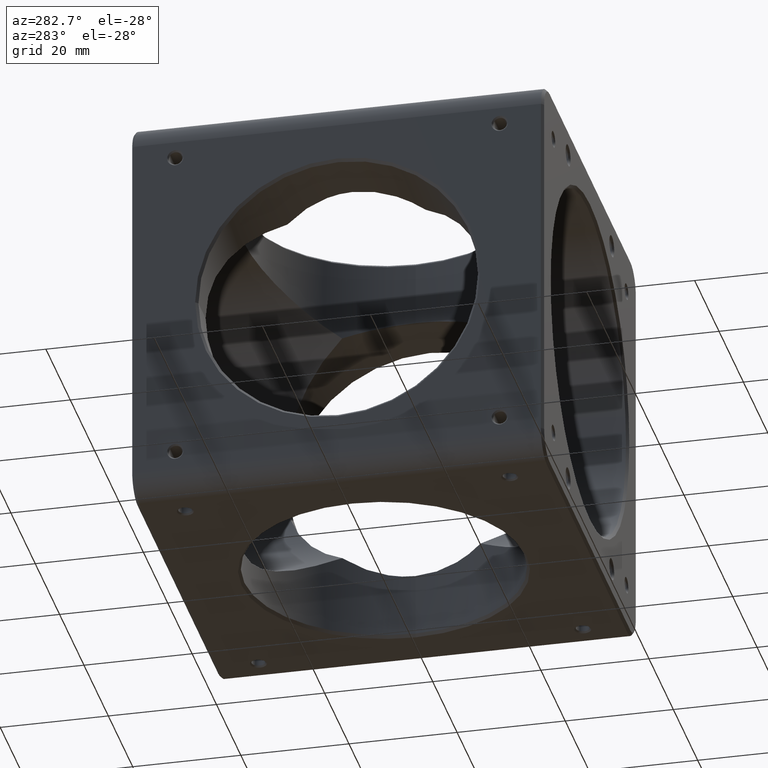
[diagram: clean part render]
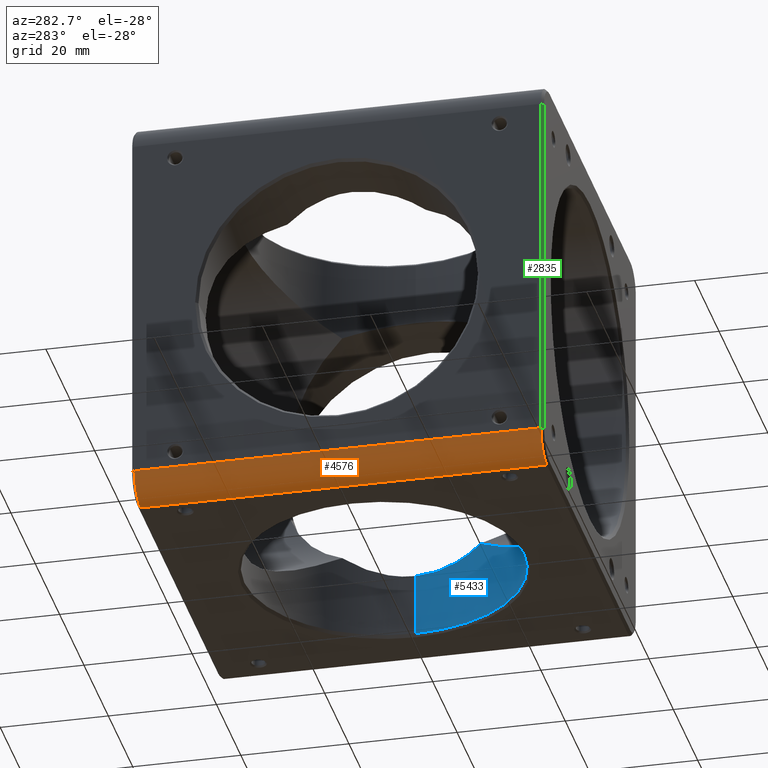
[diagram: same view with three faces highlighted in distinct colors, each labeled with its STEP entity id]
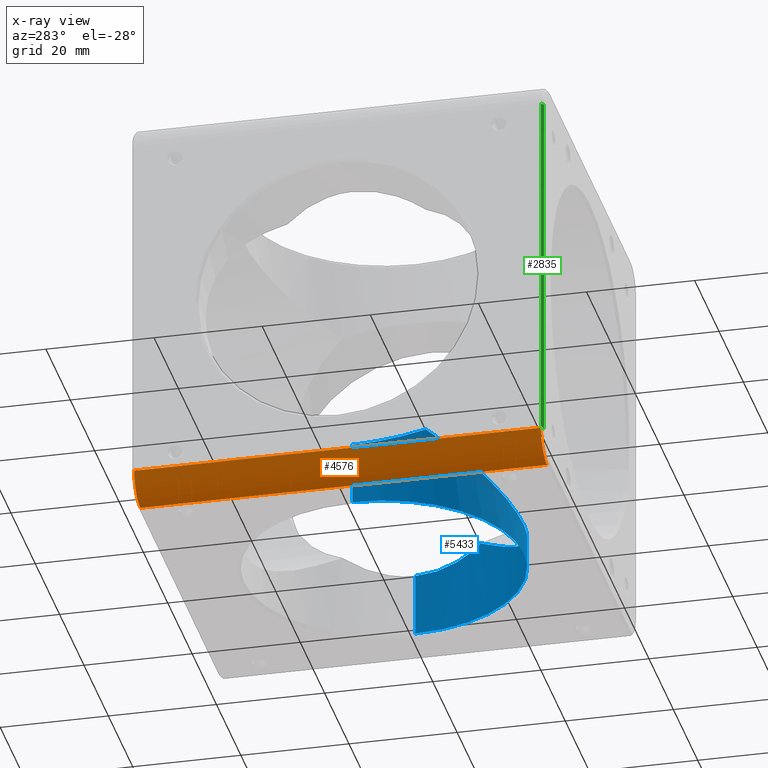
[diagram: x-ray of the same camera — body ghosted, the three highlighted faces saturated]
A machine part, auxiliary view with three faces highlighted in distinct colors.
The next image is the same camera in x-ray (body ghosted, the three faces saturated) — at least one of them is partly hidden behind the body in this view.
Their STEP definitions:

[orange] entity #4576 — the highlighted cylindrical surface (edge-blend (fillet) strip) has radius 5 mm, axis along (0, -1, 0).
#22 = AXIS2_PLACEMENT_3D ( 'NONE', #178, #3489, #5312 ) ;
#178 = CARTESIAN_POINT ( 'NONE',  ( -33.09999999999999432, -37.60000000000002274, -33.10000000000000853 ) ) ;
#289 = LINE ( 'NONE', #3669, #3917 ) ;
#314 = DIRECTION ( 'NONE',  ( 0.0000000000000000000, 0.0000000000000000000, -1.000000000000000000 ) ) ;
#1057 = AXIS2_PLACEMENT_3D ( 'NONE', #4077, #4037, #314 ) ;
#1232 = VERTEX_POINT ( 'NONE', #5263 ) ;
#1467 = EDGE_CURVE ( 'NONE', #1232, #4049, #5552, .T. ) ;
#1545 = CIRCLE ( 'NONE', #22, 5.000000000000000888 ) ;
#1603 = ORIENTED_EDGE ( 'NONE', *, *, #4471, .F. ) ;
#2088 = EDGE_CURVE ( 'NONE', #5315, #4114, #1545, .T. ) ;
#2319 = DIRECTION ( 'NONE',  ( 1.821231995776175479E-16, -1.000000000000000000, 0.0000000000000000000 ) ) ;
#2441 = ORIENTED_EDGE ( 'NONE', *, *, #1467, .T. ) ;
#2630 = ORIENTED_EDGE ( 'NONE', *, *, #2088, .T. ) ;
#2658 = LINE ( 'NONE', #5009, #5354 ) ;
#2740 = DIRECTION ( 'NONE',  ( 1.000000000000000000, 0.0000000000000000000, 0.0000000000000000000 ) ) ;
#2778 = CARTESIAN_POINT ( 'NONE',  ( -33.10000000000000853, 38.09999999999999432, -33.10000000000000853 ) ) ;
#3317 = CYLINDRICAL_SURFACE ( 'NONE', #4272, 5.000000000000000888 ) ;
#3489 = DIRECTION ( 'NONE',  ( 0.0000000000000000000, 1.000000000000000000, 0.0000000000000000000 ) ) ;
#3545 = CARTESIAN_POINT ( 'NONE',  ( -33.10000000000000853, 37.60000000000000853, -38.10000000000000142 ) ) ;
#3557 = ORIENTED_EDGE ( 'NONE', *, *, #4123, .F. ) ;
#3669 = CARTESIAN_POINT ( 'NONE',  ( -33.10000000000000142, -6.028277906019141821E-15, -38.10000000000000142 ) ) ;
#3917 = VECTOR ( 'NONE', #6034, 1000.000000000000000 ) ;
#3999 = FACE_OUTER_BOUND ( 'NONE', #5155, .T. ) ;
#4037 = DIRECTION ( 'NONE',  ( 0.0000000000000000000, -1.000000000000000000, 0.0000000000000000000 ) ) ;
#4049 = VERTEX_POINT ( 'NONE', #3545 ) ;
#4077 = CARTESIAN_POINT ( 'NONE',  ( -33.10000000000000853, 37.60000000000000853, -33.10000000000000853 ) ) ;
#4114 = VERTEX_POINT ( 'NONE', #5087 ) ;
#4123 = EDGE_CURVE ( 'NONE', #5315, #4049, #289, .T. ) ;
#4254 = CARTESIAN_POINT ( 'NONE',  ( -33.09999999999999432, -37.60000000000002274, -38.10000000000000142 ) ) ;
#4272 = AXIS2_PLACEMENT_3D ( 'NONE', #2778, #2319, #2740 ) ;
#4471 = EDGE_CURVE ( 'NONE', #1232, #4114, #2658, .T. ) ;
#4576 = ADVANCED_FACE ( 'NONE', ( #3999 ), #3317, .T. ) ;
#5009 = CARTESIAN_POINT ( 'NONE',  ( -38.10000000000000853, 38.09999999999999432, -33.10000000000000853 ) ) ;
#5087 = CARTESIAN_POINT ( 'NONE',  ( -38.09999999999999432, -37.60000000000002274, -33.10000000000000853 ) ) ;
#5155 = EDGE_LOOP ( 'NONE', ( #3557, #2630, #1603, #2441 ) ) ;
#5263 = CARTESIAN_POINT ( 'NONE',  ( -38.10000000000000853, 37.60000000000000853, -33.10000000000000853 ) ) ;
#5312 = DIRECTION ( 'NONE',  ( 0.0000000000000000000, 0.0000000000000000000, 1.000000000000000000 ) ) ;
#5315 = VERTEX_POINT ( 'NONE', #4254 ) ;
#5354 = VECTOR ( 'NONE', #5462, 1000.000000000000000 ) ;
#5462 = DIRECTION ( 'NONE',  ( 1.821231995776175479E-16, -1.000000000000000000, 0.0000000000000000000 ) ) ;
#5552 = CIRCLE ( 'NONE', #1057, 4.999999999999997335 ) ;
#6034 = DIRECTION ( 'NONE',  ( -1.821231995776175479E-16, 1.000000000000000000, -0.0000000000000000000 ) ) ;

[blue] entity #5433 — the highlighted cylindrical surface (partial cylindrical patch) has radius 25.845 mm, axis along (-0, -0, -1).
#61 =( BOUNDED_CURVE ( )  B_SPLINE_CURVE ( 3, ( #4275, #3839, #4290, #4767 ),
 .UNSPECIFIED., .F., .T. ) 
 B_SPLINE_CURVE_WITH_KNOTS ( ( 4, 4 ),
 ( 2.623296937504102200, 3.141592653589793116 ),
 .UNSPECIFIED. ) 
 CURVE ( )  GEOMETRIC_REPRESENTATION_ITEM ( )  RATIONAL_B_SPLINE_CURVE ( ( 1.000000000000000000, 0.9777391309083932613, 0.9777391309083932613, 1.000000000000000000 ) ) 
 REPRESENTATION_ITEM ( '' )  );
#78 =( BOUNDED_CURVE ( )  B_SPLINE_CURVE ( 3, ( #396, #2330, #4725, #992 ),
 .UNSPECIFIED., .F., .F. ) 
 B_SPLINE_CURVE_WITH_KNOTS ( ( 4, 4 ),
 ( 0.0000000000000000000, 0.5182957160856516143 ),
 .UNSPECIFIED. ) 
 CURVE ( )  GEOMETRIC_REPRESENTATION_ITEM ( )  RATIONAL_B_SPLINE_CURVE ( ( 1.000000000000000000, 0.9777391309083967030, 0.9777391309083967030, 1.000000000000000000 ) ) 
 REPRESENTATION_ITEM ( '' )  );
#157 = CARTESIAN_POINT ( 'NONE',  ( -25.84499999999999886, 0.0000000000000000000, -37.59999999999990195 ) ) ;
#183 = CARTESIAN_POINT ( 'NONE',  ( -7.688962224019883607, -24.68180839699524043, -30.81040016890559841 ) ) ;
#188 = CARTESIAN_POINT ( 'NONE',  ( -25.84499999999999886, 0.0000000000000000000, -25.84499999999999886 ) ) ;
#204 = CARTESIAN_POINT ( 'NONE',  ( 17.81514527074461185, -18.73183969460124842, -26.28526596313227159 ) ) ;
#246 = CARTESIAN_POINT ( 'NONE',  ( 9.335434536426429730, -24.12805042232668029, -30.36739620683908214 ) ) ;
#280 = CARTESIAN_POINT ( 'NONE',  ( 19.32865632433955838, -17.19101503160539224, -25.20557273274049237 ) ) ;
#396 = CARTESIAN_POINT ( 'NONE',  ( 25.84499999999999886, 3.165099652396333975E-15, -25.84499999999999886 ) ) ;
#407 = CARTESIAN_POINT ( 'NONE',  ( 3.888303206786298122E-15, -25.84499999999999886, -31.74999999999999289 ) ) ;
#455 = VERTEX_POINT ( 'NONE', #2913 ) ;
#563 = CARTESIAN_POINT ( 'NONE',  ( -19.34288749091301085, -17.17494502539864243, -25.19460975910910960 ) ) ;
#633 = CARTESIAN_POINT ( 'NONE',  ( -18.21984667237212108, -18.33825821235884135, -26.00601808399796866 ) ) ;
#653 = CARTESIAN_POINT ( 'NONE',  ( -14.40651589955395551, -21.48651068447556867, -28.31305334065572410 ) ) ;
#877 = EDGE_CURVE ( 'NONE', #5138, #4638, #3869, .T. ) ;
#887 = EDGE_CURVE ( 'NONE', #4638, #4972, #4671, .T. ) ;
#992 = CARTESIAN_POINT ( 'NONE',  ( 22.45064030267221256, -12.80362351055241099, -22.45064030267355193 ) ) ;
#1043 = DIRECTION ( 'NONE',  ( -0.0000000000000000000, -0.0000000000000000000, -1.000000000000000000 ) ) ;
#1077 = CARTESIAN_POINT ( 'NONE',  ( -17.02547200056618593, -19.45238474709340792, -26.80351324315471118 ) ) ;
#1100 = CARTESIAN_POINT ( 'NONE',  ( -9.897202636066175785, -23.88191161807583285, -30.17322445336555248 ) ) ;
#1126 = CARTESIAN_POINT ( 'NONE',  ( -16.60611924818092433, -19.81176391541012904, -27.06566093436637033 ) ) ;
#1165 = CARTESIAN_POINT ( 'NONE',  ( 21.31570326424350625, -14.65473143854295124, -23.54626348800920965 ) ) ;
#1263 = EDGE_CURVE ( 'NONE', #5138, #3919, #61, .T. ) ;
#1427 = AXIS2_PLACEMENT_3D ( 'NONE', #6071, #1910, #4641 ) ;
#1482 = DIRECTION ( 'NONE',  ( -0.0000000000000000000, -0.0000000000000000000, -1.000000000000000000 ) ) ;
#1562 = CARTESIAN_POINT ( 'NONE',  ( -12.49420688565798088, -22.65198967103243177, -29.20738749243576393 ) ) ;
#1613 = EDGE_CURVE ( 'NONE', #3919, #4435, #1883, .T. ) ;
#1629 = CARTESIAN_POINT ( 'NONE',  ( -5.988274261424584743, -25.16934086708508289, -31.20186959097118162 ) ) ;
#1652 = CARTESIAN_POINT ( 'NONE',  ( 18.20368231813514726, -18.35431712406490590, -26.01734590773795475 ) ) ;
#1670 = CARTESIAN_POINT ( 'NONE',  ( 12.95237428408376168, -22.37218371706399722, -28.99272609665343481 ) ) ;
#1720 = ORIENTED_EDGE ( 'NONE', *, *, #3358, .T. ) ;
#1721 = ORIENTED_EDGE ( 'NONE', *, *, #1926, .T. ) ;
#1735 = CARTESIAN_POINT ( 'NONE',  ( 8.238362102897644590, -24.52513167385248138, -30.68457724993896818 ) ) ;
#1852 = CARTESIAN_POINT ( 'NONE',  ( 25.84499999999999886, 3.165099652396333580E-15, 38.10000000000000142 ) ) ;
#1883 = LINE ( 'NONE', #4709, #5414 ) ;
#1910 = DIRECTION ( 'NONE',  ( 0.0000000000000000000, 0.0000000000000000000, -1.000000000000000000 ) ) ;
#1917 = DIRECTION ( 'NONE',  ( -0.0000000000000000000, -0.0000000000000000000, -1.000000000000000000 ) ) ;
#1926 = EDGE_CURVE ( 'NONE', #5742, #4435, #3754, .T. ) ;
#1934 = EDGE_LOOP ( 'NONE', ( #2612, #1720, #1721, #4899, #4946, #2264, #4526 ) ) ;
#2016 = CARTESIAN_POINT ( 'NONE',  ( 1.202999135624844396, -25.84499999999999531, -31.74999999999999289 ) ) ;
#2035 = CARTESIAN_POINT ( 'NONE',  ( -0.6030113382820171397, -25.84500000000000242, -31.75000000000000000 ) ) ;
#2073 = FACE_OUTER_BOUND ( 'NONE', #1934, .T. ) ;
#2080 = CARTESIAN_POINT ( 'NONE',  ( -17.83158714638663866, -18.71620872484151477, -26.27412260873522598 ) ) ;
#2090 = LINE ( 'NONE', #1852, #4425 ) ;
#2099 = CARTESIAN_POINT ( 'NONE',  ( -2.416692140556037760, -25.73890639374301870, -31.66368844166057883 ) ) ;
#2167 = CARTESIAN_POINT ( 'NONE',  ( 4.793307906017638231, -25.40366024744984230, -31.39170349068858101 ) ) ;
#2183 = CARTESIAN_POINT ( 'NONE',  ( 15.29808671365649175, -20.86031528859518502, -27.83943263974729021 ) ) ;
#2204 = CARTESIAN_POINT ( 'NONE',  ( 12.46059894404367085, -22.64999317073553087, -29.20776185511119394 ) ) ;
#2264 = ORIENTED_EDGE ( 'NONE', *, *, #877, .T. ) ;
#2287 = CARTESIAN_POINT ( 'NONE',  ( 25.84499999999999886, 3.195715822375024861E-15, -37.59999999999990195 ) ) ;
#2330 = CARTESIAN_POINT ( 'NONE',  ( 25.84500000000000597, -4.515833756748623529, -25.84499999999998820 ) ) ;
#2495 = CARTESIAN_POINT ( 'NONE',  ( 4.195801804806095880, -25.50928708007777246, -31.47729004100007089 ) ) ;
#2553 = CARTESIAN_POINT ( 'NONE',  ( -11.48904380758748545, -23.17997169107630029, -29.61970202614239867 ) ) ;
#2605 = CARTESIAN_POINT ( 'NONE',  ( -22.45064030267287691, -12.80362351055358161, -22.45064030267288047 ) ) ;
#2612 = ORIENTED_EDGE ( 'NONE', *, *, #4325, .F. ) ;
#2637 = CARTESIAN_POINT ( 'NONE',  ( 16.59116741803625672, -19.82428397739074910, -27.07482973920773262 ) ) ;
#2913 = CARTESIAN_POINT ( 'NONE',  ( 25.84499999999999886, 3.165099652396333975E-15, -25.84499999999999886 ) ) ;
#2972 = CARTESIAN_POINT ( 'NONE',  ( -9.351178390692826525, -24.10111157733374299, -30.34711645161837978 ) ) ;
#2995 = DIRECTION ( 'NONE',  ( -1.000000000000000000, 0.0000000000000000000, 0.0000000000000000000 ) ) ;
#3089 = CARTESIAN_POINT ( 'NONE',  ( 6.538847910965902344, -25.01109074364455154, -31.07480998789436910 ) ) ;
#3358 = EDGE_CURVE ( 'NONE', #455, #5742, #2090, .T. ) ;
#3425 = CARTESIAN_POINT ( 'NONE',  ( -1.206946209193114905, -25.82392270930590072, -31.73283547811143279 ) ) ;
#3469 = CARTESIAN_POINT ( 'NONE',  ( -20.03614703817828513, -16.36037875408972653, -24.64408609627546198 ) ) ;
#3494 = CARTESIAN_POINT ( 'NONE',  ( -4.823527408755968082, -25.41973918680196221, -31.40464552373122586 ) ) ;
#3539 = CARTESIAN_POINT ( 'NONE',  ( 5.963330291083185131, -25.15473010169666779, -31.19060019571040954 ) ) ;
#3754 = CIRCLE ( 'NONE', #1427, 25.84499999999999886 ) ;
#3839 = CARTESIAN_POINT ( 'NONE',  ( -24.68778618224968469, -8.880877937350282636, -24.68778618224967758 ) ) ;
#3869 = B_SPLINE_CURVE_WITH_KNOTS ( 'NONE', 3,
 ( #5857, #3948, #4842, #3469, #563, #633, #2080, #1077, #1126, #5355, #653, #1562, #2553, #1100, #2972, #5835, #183, #1629, #3494, #3967, #2099, #3425, #2035, #5775 ),
 .UNSPECIFIED., .F., .F.,
 ( 4, 2, 2, 2, 2, 2, 2, 2, 2, 2, 2, 4 ),
 ( 0.01405118284760461037, 0.01767536608136887483, 0.02129954931513314276, 0.02311164093201527325, 0.02492373254889741069, 0.02854791578266167168, 0.03217209901642593267, 0.03398419063330806317, 0.03579628225019018672, 0.03942046548395444772, 0.04123255710083657821, 0.04304464871771870871 ),
 .UNSPECIFIED. ) ;
#3873 = CARTESIAN_POINT ( 'NONE',  ( 0.0000000000000000000, 0.0000000000000000000, 38.10000000000000142 ) ) ;
#3919 = VERTEX_POINT ( 'NONE', #188 ) ;
#3948 = CARTESIAN_POINT ( 'NONE',  ( -21.91072076717520289, -13.75035076115206856, -22.99055983817056514 ) ) ;
#3967 = CARTESIAN_POINT ( 'NONE',  ( -3.025589438624881833, -25.67442728759290560, -31.61126741895110825 ) ) ;
#4008 = CARTESIAN_POINT ( 'NONE',  ( 11.45022535469901293, -23.17716669494519621, -29.61844388140267270 ) ) ;
#4027 = CARTESIAN_POINT ( 'NONE',  ( 17.00941972275176184, -19.46640336726937548, -26.81369516619441029 ) ) ;
#4063 = AXIS2_PLACEMENT_3D ( 'NONE', #3873, #1043, #2995 ) ;
#4275 = CARTESIAN_POINT ( 'NONE',  ( -22.45064030267287691, -12.80362351055358161, -22.45064030267288047 ) ) ;
#4290 = CARTESIAN_POINT ( 'NONE',  ( -25.84500000000000242, -4.515833756748983241, -25.84499999999999176 ) ) ;
#4325 = EDGE_CURVE ( 'NONE', #455, #4972, #78, .T. ) ;
#4425 = VECTOR ( 'NONE', #1482, 1000.000000000000000 ) ;
#4428 = CARTESIAN_POINT ( 'NONE',  ( 3.888303206786298122E-15, -25.84499999999999886, -31.74999999999999289 ) ) ;
#4435 = VERTEX_POINT ( 'NONE', #157 ) ;
#4491 = CARTESIAN_POINT ( 'NONE',  ( 20.02466232403865831, -16.37477505168626735, -24.65357233149515537 ) ) ;
#4526 = ORIENTED_EDGE ( 'NONE', *, *, #887, .T. ) ;
#4638 = VERTEX_POINT ( 'NONE', #407 ) ;
#4641 = DIRECTION ( 'NONE',  ( 1.000000000000000000, 0.0000000000000000000, 0.0000000000000000000 ) ) ;
#4671 = B_SPLINE_CURVE_WITH_KNOTS ( 'NONE', 3,
 ( #4428, #2016, #5288, #2495, #2167, #3539, #3089, #1735, #246, #5963, #4008, #2204, #1670, #5441, #2183, #2637, #4027, #204, #1652, #280, #4491, #1165, #5901, #5404 ),
 .UNSPECIFIED., .F., .F.,
 ( 4, 2, 2, 2, 2, 2, 2, 2, 2, 2, 2, 4 ),
 ( 0.04304464871771870871, 0.04665974599763529629, 0.04846729463759359008, 0.05027484327755188387, 0.05388994055746847839, 0.05569748919742677218, 0.05750503783738505903, 0.06112013511730164661, 0.06292768375725993346, 0.06473523239721823419, 0.06835032967713482177, 0.07196542695705140935 ),
 .UNSPECIFIED. ) ;
#4709 = CARTESIAN_POINT ( 'NONE',  ( -25.84499999999999886, 0.0000000000000000000, 38.10000000000000142 ) ) ;
#4725 = CARTESIAN_POINT ( 'NONE',  ( 24.68778618224987298, -8.880877937349611173, -24.68778618224985877 ) ) ;
#4767 = CARTESIAN_POINT ( 'NONE',  ( -25.84499999999999886, 0.0000000000000000000, -25.84499999999999886 ) ) ;
#4842 = CARTESIAN_POINT ( 'NONE',  ( -21.32005843994131666, -14.64801314957967016, -23.54215953929516658 ) ) ;
#4899 = ORIENTED_EDGE ( 'NONE', *, *, #1613, .F. ) ;
#4946 = ORIENTED_EDGE ( 'NONE', *, *, #1263, .F. ) ;
#4972 = VERTEX_POINT ( 'NONE', #5068 ) ;
#5045 = CYLINDRICAL_SURFACE ( 'NONE', #4063, 25.84499999999999886 ) ;
#5068 = CARTESIAN_POINT ( 'NONE',  ( 22.45064030267221256, -12.80362351055241099, -22.45064030267355193 ) ) ;
#5138 = VERTEX_POINT ( 'NONE', #2605 ) ;
#5288 = CARTESIAN_POINT ( 'NONE',  ( 2.402334136292103128, -25.76141758859071729, -31.68184740729985904 ) ) ;
#5355 = CARTESIAN_POINT ( 'NONE',  ( -15.31357399152989629, -20.84895969359013534, -27.83091347407598803 ) ) ;
#5404 = CARTESIAN_POINT ( 'NONE',  ( 22.45064030267221256, -12.80362351055241099, -22.45064030267355193 ) ) ;
#5414 = VECTOR ( 'NONE', #1917, 1000.000000000000000 ) ;
#5433 = ADVANCED_FACE ( 'NONE', ( #2073 ), #5045, .F. ) ;
#5441 = CARTESIAN_POINT ( 'NONE',  ( 14.38992217631493453, -21.49773197850952400, -28.32156959283603825 ) ) ;
#5742 = VERTEX_POINT ( 'NONE', #2287 ) ;
#5775 = CARTESIAN_POINT ( 'NONE',  ( 3.888303206786298122E-15, -25.84499999999999886, -31.74999999999999289 ) ) ;
#5835 = CARTESIAN_POINT ( 'NONE',  ( -8.248086653162864934, -24.50055475126161042, -30.66530744643796424 ) ) ;
#5857 = CARTESIAN_POINT ( 'NONE',  ( -22.45064030267287691, -12.80362351055358161, -22.45064030267288047 ) ) ;
#5901 = CARTESIAN_POINT ( 'NONE',  ( 21.91319040617865355, -13.74602034821093177, -22.98809019916712870 ) ) ;
#5963 = CARTESIAN_POINT ( 'NONE',  ( 10.93046662764255927, -23.42704007858340631, -29.81449390638308827 ) ) ;
#6071 = CARTESIAN_POINT ( 'NONE',  ( 0.0000000000000000000, 0.0000000000000000000, -37.59999999999990195 ) ) ;

[green] entity #2835 — the highlighted planar face has unit normal (0.7071, 0.7071, 0).
#447 = EDGE_CURVE ( 'NONE', #4114, #1068, #970, .T. ) ;
#642 = VECTOR ( 'NONE', #3155, 1000.000000000000114 ) ;
#656 = EDGE_LOOP ( 'NONE', ( #885, #5072, #3766, #5235 ) ) ;
#798 = LINE ( 'NONE', #2676, #642 ) ;
#885 = ORIENTED_EDGE ( 'NONE', *, *, #1868, .T. ) ;
#970 = LINE ( 'NONE', #971, #5771 ) ;
#971 = CARTESIAN_POINT ( 'NONE',  ( -38.09999999999999432, -37.60000000000002274, 38.10000000000000142 ) ) ;
#983 = CARTESIAN_POINT ( 'NONE',  ( -37.60000000000002274, -38.10000000000000853, 33.10000000000000142 ) ) ;
#1032 = PLANE ( 'NONE',  #5244 ) ;
#1033 = CARTESIAN_POINT ( 'NONE',  ( -38.09999999999999432, -37.60000000000002274, 33.10000000000000142 ) ) ;
#1068 = VERTEX_POINT ( 'NONE', #2262 ) ;
#1092 = DIRECTION ( 'NONE',  ( -0.0000000000000000000, 0.0000000000000000000, -1.000000000000000000 ) ) ;
#1148 = VERTEX_POINT ( 'NONE', #2824 ) ;
#1582 = DIRECTION ( 'NONE',  ( 0.7071067811865376918, -0.7071067811865573427, 0.0000000000000000000 ) ) ;
#1868 = EDGE_CURVE ( 'NONE', #4114, #1148, #798, .T. ) ;
#1950 = DIRECTION ( 'NONE',  ( 0.7071067811865573427, 0.7071067811865376918, 0.0000000000000000000 ) ) ;
#2025 = EDGE_CURVE ( 'NONE', #1068, #4693, #3010, .T. ) ;
#2262 = CARTESIAN_POINT ( 'NONE',  ( -38.09999999999999432, -37.60000000000002274, 33.10000000000000142 ) ) ;
#2676 = CARTESIAN_POINT ( 'NONE',  ( -38.09999999999999432, -37.60000000000002274, -33.10000000000000853 ) ) ;
#2824 = CARTESIAN_POINT ( 'NONE',  ( -37.60000000000002274, -38.10000000000000853, -33.10000000000000853 ) ) ;
#2835 = ADVANCED_FACE ( 'NONE', ( #5055 ), #1032, .F. ) ;
#3010 = LINE ( 'NONE', #1033, #5744 ) ;
#3155 = DIRECTION ( 'NONE',  ( 0.7071067811865376918, -0.7071067811865573427, 0.0000000000000000000 ) ) ;
#3372 = CARTESIAN_POINT ( 'NONE',  ( -37.60000000000002274, -38.10000000000000853, 38.10000000000000142 ) ) ;
#3449 = VECTOR ( 'NONE', #5930, 1000.000000000000000 ) ;
#3766 = ORIENTED_EDGE ( 'NONE', *, *, #2025, .F. ) ;
#4114 = VERTEX_POINT ( 'NONE', #5087 ) ;
#4693 = VERTEX_POINT ( 'NONE', #983 ) ;
#4770 = LINE ( 'NONE', #5429, #3449 ) ;
#5055 = FACE_OUTER_BOUND ( 'NONE', #656, .T. ) ;
#5072 = ORIENTED_EDGE ( 'NONE', *, *, #5611, .F. ) ;
#5087 = CARTESIAN_POINT ( 'NONE',  ( -38.09999999999999432, -37.60000000000002274, -33.10000000000000853 ) ) ;
#5214 = DIRECTION ( 'NONE',  ( 0.0000000000000000000, 0.0000000000000000000, 1.000000000000000000 ) ) ;
#5235 = ORIENTED_EDGE ( 'NONE', *, *, #447, .F. ) ;
#5244 = AXIS2_PLACEMENT_3D ( 'NONE', #3372, #1950, #1092 ) ;
#5429 = CARTESIAN_POINT ( 'NONE',  ( -37.60000000000002274, -38.10000000000000853, 38.10000000000000142 ) ) ;
#5611 = EDGE_CURVE ( 'NONE', #4693, #1148, #4770, .T. ) ;
#5744 = VECTOR ( 'NONE', #1582, 1000.000000000000114 ) ;
#5771 = VECTOR ( 'NONE', #5214, 1000.000000000000000 ) ;
#5930 = DIRECTION ( 'NONE',  ( 0.0000000000000000000, 0.0000000000000000000, -1.000000000000000000 ) ) ;